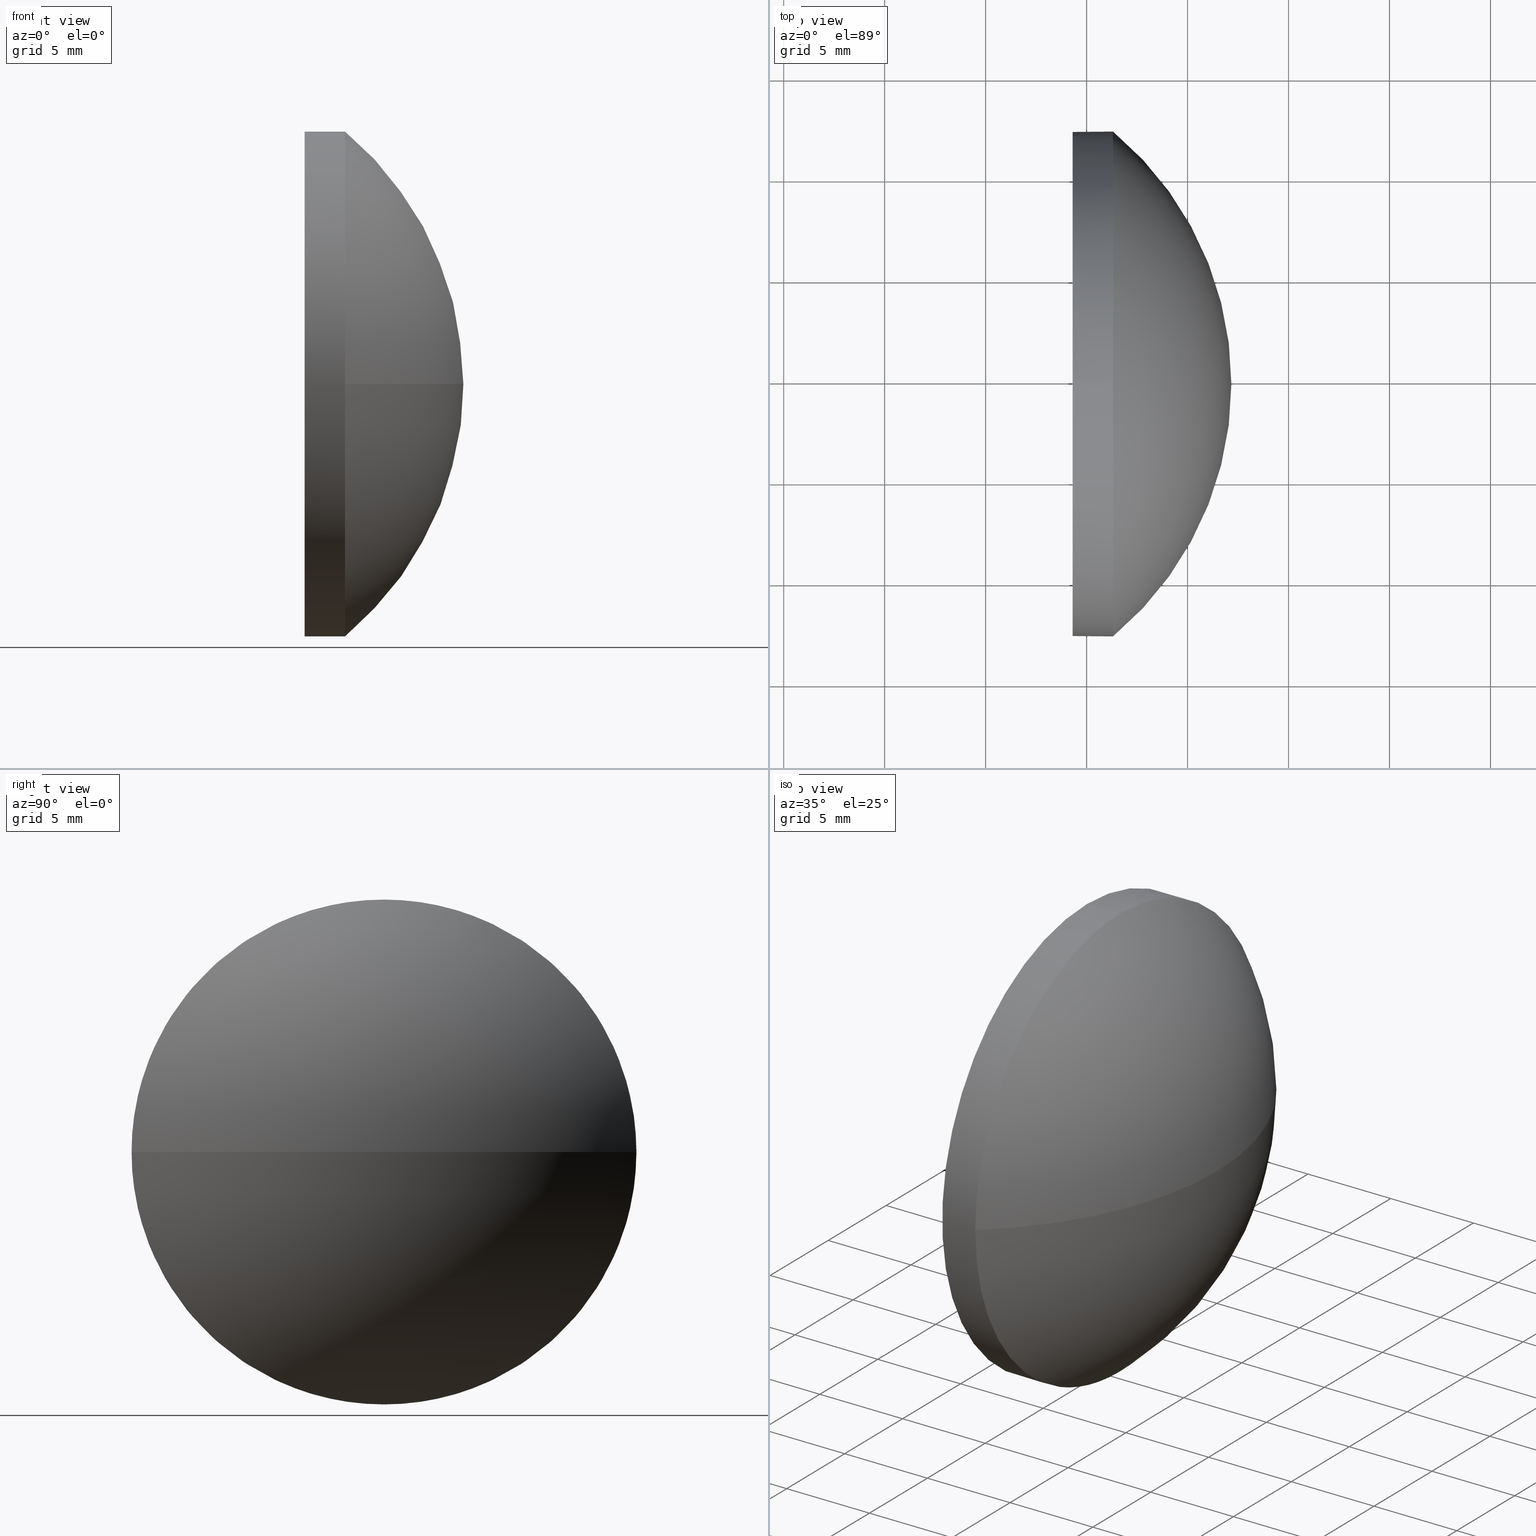
[diagram: canonical four-view strip — front | top / right | iso, engineering-drawing reading convention]
A machine part, canonical four-view strip (front | top / right | iso — engineering-drawing reading convention). The complete STEP part file that produces these views, byte-faithful:
ISO-10303-21;
HEADER;
FILE_DESCRIPTION (( 'STEP AP214' ),
    '1' );
FILE_NAME ('100210.STEP',
    '2019-05-23T07:03:20',
    ( '' ),
    ( '' ),
    'SwSTEP 2.0',
    'SolidWorks 2016',
    '' );
FILE_SCHEMA (( 'AUTOMOTIVE_DESIGN' ));
ENDSEC;

DATA;
#1 = VERTEX_POINT ( 'NONE', #4 ) ;
#2 = MECHANICAL_DESIGN_GEOMETRIC_PRESENTATION_REPRESENTATION (  '', ( #157 ), #80 ) ;
#3 = CIRCLE ( 'NONE', #97, 12.50000000000000000 ) ;
#4 = CARTESIAN_POINT ( 'NONE',  ( 411.3082929316683500, -17.72920143275539900, 0.0000000000000000000 ) ) ;
#5 = CYLINDRICAL_SURFACE ( 'NONE', #46, 12.50000000000000000 ) ;
#6 = CARTESIAN_POINT ( 'NONE',  ( 409.3082929316683500, -5.229201432755417000, 0.0000000000000000000 ) ) ;
#7 = ADVANCED_FACE ( 'NONE', ( #71 ), #109, .T. ) ;
#8 = CARTESIAN_POINT ( 'NONE',  ( 411.3082929316683500, -5.229201432755415300, -12.50000000000000000 ) ) ;
#9 = SURFACE_STYLE_USAGE ( .BOTH. , #39 ) ;
#10 = VERTEX_POINT ( 'NONE', #104 ) ;
#11 = UNCERTAINTY_MEASURE_WITH_UNIT (LENGTH_MEASURE( 1.000000000000000100E-005 ), #158, 'distance_accuracy_value', 'NONE');
#12 = AXIS2_PLACEMENT_3D ( 'NONE', #149, #67, #68 ) ;
#13 = EDGE_CURVE ( 'NONE', #107, #66, #3, .T. ) ;
#14 = AXIS2_PLACEMENT_3D ( 'NONE', #88, #117, #26 ) ;
#15 = ORIENTED_EDGE ( 'NONE', *, *, #13, .T. ) ;
#16 = DIRECTION ( 'NONE',  ( 0.0000000000000000000, 0.0000000000000000000, 1.000000000000000000 ) ) ;
#17 =( NAMED_UNIT ( * ) PLANE_ANGLE_UNIT ( ) SI_UNIT ( $, .RADIAN. ) );
#18 = DIRECTION ( 'NONE',  ( -1.000000000000000000, -0.0000000000000000000, -0.0000000000000000000 ) ) ;
#19 = CARTESIAN_POINT ( 'NONE',  ( 409.3082929316683500, -5.229201432755417000, 0.0000000000000000000 ) ) ;
#20 = CARTESIAN_POINT ( 'NONE',  ( 400.9063816688697000, -5.229201432755405500, 0.0000000000000000000 ) ) ;
#21 = DIRECTION ( 'NONE',  ( -1.000000000000000000, -0.0000000000000000000, -0.0000000000000000000 ) ) ;
#22 = CARTESIAN_POINT ( 'NONE',  ( 400.9063816688697000, -5.229201432755405500, 0.0000000000000000000 ) ) ;
#23 = EDGE_CURVE ( 'NONE', #66, #107, #48, .T. ) ;
#24 = PRODUCT_DEFINITION_FORMATION_WITH_SPECIFIED_SOURCE ( '�κ�', '', #111, .NOT_KNOWN. ) ;
#25 = ORIENTED_EDGE ( 'NONE', *, *, #33, .F. ) ;
#26 = DIRECTION ( 'NONE',  ( 1.000000000000000000, 0.0000000000000000000, 0.0000000000000000000 ) ) ;
#27 = ORIENTED_EDGE ( 'NONE', *, *, #84, .T. ) ;
#28 = APPLICATION_PROTOCOL_DEFINITION ( 'draft international standard', 'automotive_design', 1998, #141 ) ;
#29 =( GEOMETRIC_REPRESENTATION_CONTEXT ( 3 ) GLOBAL_UNCERTAINTY_ASSIGNED_CONTEXT ( ( #186 ) ) GLOBAL_UNIT_ASSIGNED_CONTEXT ( ( #30, #17, #126 ) ) REPRESENTATION_CONTEXT ( 'NONE', 'WORKASPACE' ) );
#30 =( LENGTH_UNIT ( ) NAMED_UNIT ( * ) SI_UNIT ( .MILLI., .METRE. ) );
#31 = ORIENTED_EDGE ( 'NONE', *, *, #13, .F. ) ;
#32 = CARTESIAN_POINT ( 'NONE',  ( 411.3082929316683500, -5.229201432755417000, 0.0000000000000000000 ) ) ;
#33 = EDGE_CURVE ( 'NONE', #90, #151, #98, .T. ) ;
#34 = DIRECTION ( 'NONE',  ( 0.0000000000000000000, 0.0000000000000000000, 1.000000000000000000 ) ) ;
#35 =( NAMED_UNIT ( * ) SI_UNIT ( $, .STERADIAN. ) SOLID_ANGLE_UNIT ( ) );
#36 = CARTESIAN_POINT ( 'NONE',  ( 407.2791853532313600, -5.229201432755415300, -12.50000000000000000 ) ) ;
#37 = ADVANCED_FACE ( 'NONE', ( #102 ), #5, .T. ) ;
#38 = PRODUCT_RELATED_PRODUCT_CATEGORY ( 'part', '', ( #111 ) ) ;
#39 = SURFACE_SIDE_STYLE ('',( #42 ) ) ;
#40 = ORIENTED_EDGE ( 'NONE', *, *, #150, .T. ) ;
#41 = PRESENTATION_LAYER_ASSIGNMENT (  '', '', ( #96 ) ) ;
#42 = SURFACE_STYLE_FILL_AREA ( #121 ) ;
#43 = ORIENTED_EDGE ( 'NONE', *, *, #145, .F. ) ;
#44 = FACE_OUTER_BOUND ( 'NONE', #140, .T. ) ;
#45 = SURFACE_STYLE_USAGE ( .BOTH. , #179 ) ;
#46 = AXIS2_PLACEMENT_3D ( 'NONE', #161, #76, #49 ) ;
#47 = DIRECTION ( 'NONE',  ( 0.0000000000000000000, -1.000000000000000000, 0.0000000000000000000 ) ) ;
#48 = CIRCLE ( 'NONE', #99, 12.50000000000000000 ) ;
#49 = DIRECTION ( 'NONE',  ( 0.0000000000000000000, 0.0000000000000000000, 1.000000000000000000 ) ) ;
#50 = DIRECTION ( 'NONE',  ( 0.0000000000000000000, 0.0000000000000000000, 1.000000000000000000 ) ) ;
#51 = DIRECTION ( 'NONE',  ( 0.0000000000000000000, 0.0000000000000000000, 1.000000000000000000 ) ) ;
#52 = AXIS2_PLACEMENT_3D ( 'NONE', #6, #181, #167 ) ;
#53 = CARTESIAN_POINT ( 'NONE',  ( 411.3082929316683500, -5.229201432755417000, 12.50000000000000000 ) ) ;
#54 = FACE_OUTER_BOUND ( 'NONE', #116, .T. ) ;
#55 = ORIENTED_EDGE ( 'NONE', *, *, #82, .T. ) ;
#56 = SHAPE_DEFINITION_REPRESENTATION ( #134, #173 ) ;
#57 = AXIS2_PLACEMENT_3D ( 'NONE', #131, #78, #50 ) ;
#58 = COLOUR_RGB ( '',1.000000000000000000, 1.000000000000000000, 1.000000000000000000 ) ;
#59 = AXIS2_PLACEMENT_3D ( 'NONE', #176, #18, #16 ) ;
#60 = AXIS2_PLACEMENT_3D ( 'NONE', #162, #21, #51 ) ;
#61 = DIRECTION ( 'NONE',  ( 0.0000000000000000000, 0.0000000000000000000, 1.000000000000000000 ) ) ;
#62 = CIRCLE ( 'NONE', #57, 12.50000000000000000 ) ;
#63 = UNCERTAINTY_MEASURE_WITH_UNIT (LENGTH_MEASURE( 1.000000000000000100E-005 ), #170, 'distance_accuracy_value', 'NONE');
#64 = DIRECTION ( 'NONE',  ( 0.0000000000000000000, -1.000000000000000000, 0.0000000000000000000 ) ) ;
#65 = CARTESIAN_POINT ( 'NONE',  ( 409.3082929316683500, -5.229201432755415300, -12.50000000000000000 ) ) ;
#66 = VERTEX_POINT ( 'NONE', #101 ) ;
#67 = DIRECTION ( 'NONE',  ( 0.0000000000000000000, -1.224646799147353200E-016, 1.000000000000000000 ) ) ;
#68 = DIRECTION ( 'NONE',  ( 0.0000000000000000000, -1.000000000000000000, -1.224646799147353000E-016 ) ) ;
#69 = LINE ( 'NONE', #36, #169 ) ;
#70 = PRESENTATION_STYLE_ASSIGNMENT (( #9 ) ) ;
#71 = FACE_OUTER_BOUND ( 'NONE', #153, .T. ) ;
#72 = EDGE_CURVE ( 'NONE', #1, #180, #175, .T. ) ;
#73 = FILL_AREA_STYLE ('',( #166 ) ) ;
#74 = DIRECTION ( 'NONE',  ( 0.0000000000000000000, 0.0000000000000000000, 1.000000000000000000 ) ) ;
#75 = ORIENTED_EDGE ( 'NONE', *, *, #72, .F. ) ;
#76 = DIRECTION ( 'NONE',  ( -1.000000000000000000, -0.0000000000000000000, -0.0000000000000000000 ) ) ;
#77 = DIRECTION ( 'NONE',  ( 0.0000000000000000000, 0.0000000000000000000, 1.000000000000000000 ) ) ;
#78 = DIRECTION ( 'NONE',  ( -1.000000000000000000, -0.0000000000000000000, -0.0000000000000000000 ) ) ;
#79 =( NAMED_UNIT ( * ) PLANE_ANGLE_UNIT ( ) SI_UNIT ( $, .RADIAN. ) );
#80 =( GEOMETRIC_REPRESENTATION_CONTEXT ( 3 ) GLOBAL_UNCERTAINTY_ASSIGNED_CONTEXT ( ( #63 ) ) GLOBAL_UNIT_ASSIGNED_CONTEXT ( ( #170, #79, #35 ) ) REPRESENTATION_CONTEXT ( 'NONE', 'WORKASPACE' ) );
#81 = ORIENTED_EDGE ( 'NONE', *, *, #150, .F. ) ;
#82 = EDGE_CURVE ( 'NONE', #151, #1, #62, .T. ) ;
#83 = COLOUR_RGB ( '',1.000000000000000000, 1.000000000000000000, 1.000000000000000000 ) ;
#84 = EDGE_CURVE ( 'NONE', #10, #1, #156, .T. ) ;
#85 = EDGE_LOOP ( 'NONE', ( #81, #55, #94, #171, #31 ) ) ;
#86 = DIRECTION ( 'NONE',  ( -1.000000000000000000, -0.0000000000000000000, -0.0000000000000000000 ) ) ;
#87 =( NAMED_UNIT ( * ) SI_UNIT ( $, .STERADIAN. ) SOLID_ANGLE_UNIT ( ) );
#88 = CARTESIAN_POINT ( 'NONE',  ( 0.0000000000000000000, 0.0000000000000000000, 0.0000000000000000000 ) ) ;
#89 = CARTESIAN_POINT ( 'NONE',  ( 411.3082929316683500, 7.270798567244581200, 1.530808498934189700E-015 ) ) ;
#90 = VERTEX_POINT ( 'NONE', #89 ) ;
#91 = DIRECTION ( 'NONE',  ( -1.000000000000000000, -0.0000000000000000000, -0.0000000000000000000 ) ) ;
#92 = DIRECTION ( 'NONE',  ( -1.000000000000000000, -0.0000000000000000000, -0.0000000000000000000 ) ) ;
#93 = CIRCLE ( 'NONE', #59, 12.50000000000000000 ) ;
#94 = ORIENTED_EDGE ( 'NONE', *, *, #72, .T. ) ;
#95 = PRESENTATION_STYLE_ASSIGNMENT (( #45 ) ) ;
#96 = STYLED_ITEM ( 'NONE', ( #95 ), #173 ) ;
#97 = AXIS2_PLACEMENT_3D ( 'NONE', #164, #177, #77 ) ;
#98 = CIRCLE ( 'NONE', #139, 12.50000000000000000 ) ;
#99 = AXIS2_PLACEMENT_3D ( 'NONE', #19, #86, #34 ) ;
#100 = ORIENTED_EDGE ( 'NONE', *, *, #183, .F. ) ;
#101 = CARTESIAN_POINT ( 'NONE',  ( 409.3082929316683500, -5.229201432755417000, 12.50000000000000000 ) ) ;
#102 = FACE_OUTER_BOUND ( 'NONE', #85, .T. ) ;
#103 = ADVANCED_FACE ( 'NONE', ( #44 ), #119, .T. ) ;
#104 = CARTESIAN_POINT ( 'NONE',  ( 417.1682929316683600, -5.229201432755406400, 0.0000000000000000000 ) ) ;
#105 = MANIFOLD_SOLID_BREP ( '��ת1', #184 ) ;
#106 = MECHANICAL_DESIGN_GEOMETRIC_PRESENTATION_REPRESENTATION (  '', ( #96 ), #142 ) ;
#107 = VERTEX_POINT ( 'NONE', #65 ) ;
#108 = PLANE ( 'NONE',  #52 ) ;
#109 = SPHERICAL_SURFACE ( 'NONE', #155, 16.26191126279863800 ) ;
#110 = ORIENTED_EDGE ( 'NONE', *, *, #33, .T. ) ;
#111 = PRODUCT ( '100210', '100210', '', ( #114 ) ) ;
#112 = ORIENTED_EDGE ( 'NONE', *, *, #145, .T. ) ;
#113 = FACE_OUTER_BOUND ( 'NONE', #185, .T. ) ;
#114 = PRODUCT_CONTEXT ( 'NONE', #178, 'mechanical' ) ;
#115 = DIRECTION ( 'NONE',  ( -1.000000000000000000, -0.0000000000000000000, -0.0000000000000000000 ) ) ;
#116 = EDGE_LOOP ( 'NONE', ( #43, #27, #125, #25 ) ) ;
#117 = DIRECTION ( 'NONE',  ( 0.0000000000000000000, 0.0000000000000000000, 1.000000000000000000 ) ) ;
#118 = PRODUCT_DEFINITION ( 'δ֪', '', #24, #123 ) ;
#119 = CYLINDRICAL_SURFACE ( 'NONE', #60, 12.50000000000000000 ) ;
#120 = FILL_AREA_STYLE_COLOUR ( '', #83 ) ;
#121 = FILL_AREA_STYLE ('',( #120 ) ) ;
#122 = LINE ( 'NONE', #182, #154 ) ;
#123 = PRODUCT_DEFINITION_CONTEXT ( 'detailed design', #141, 'design' ) ;
#124 = AXIS2_PLACEMENT_3D ( 'NONE', #32, #127, #147 ) ;
#125 = ORIENTED_EDGE ( 'NONE', *, *, #82, .F. ) ;
#126 =( NAMED_UNIT ( * ) SI_UNIT ( $, .STERADIAN. ) SOLID_ANGLE_UNIT ( ) );
#127 = DIRECTION ( 'NONE',  ( -1.000000000000000000, -0.0000000000000000000, -0.0000000000000000000 ) ) ;
#128 = ADVANCED_FACE ( 'NONE', ( #113 ), #108, .F. ) ;
#129 = SPHERICAL_SURFACE ( 'NONE', #174, 16.26191126279863800 ) ;
#130 = CARTESIAN_POINT ( 'NONE',  ( 411.3082929316683500, -5.229201432755417000, 0.0000000000000000000 ) ) ;
#131 = CARTESIAN_POINT ( 'NONE',  ( 411.3082929316683500, -5.229201432755417000, 0.0000000000000000000 ) ) ;
#132 = DIRECTION ( 'NONE',  ( -1.000000000000000000, 0.0000000000000000000, 0.0000000000000000000 ) ) ;
#133 = CIRCLE ( 'NONE', #12, 16.26191126279864100 ) ;
#134 = PRODUCT_DEFINITION_SHAPE ( 'NONE', 'NONE',  #118 ) ;
#135 = ORIENTED_EDGE ( 'NONE', *, *, #23, .F. ) ;
#136 = EDGE_CURVE ( 'NONE', #180, #66, #122, .T. ) ;
#137 = ORIENTED_EDGE ( 'NONE', *, *, #136, .F. ) ;
#138 = ORIENTED_EDGE ( 'NONE', *, *, #84, .F. ) ;
#139 = AXIS2_PLACEMENT_3D ( 'NONE', #130, #115, #61 ) ;
#140 = EDGE_LOOP ( 'NONE', ( #110, #40, #135, #137, #165 ) ) ;
#141 = APPLICATION_CONTEXT ( 'automotive_design' ) ;
#142 =( GEOMETRIC_REPRESENTATION_CONTEXT ( 3 ) GLOBAL_UNCERTAINTY_ASSIGNED_CONTEXT ( ( #11 ) ) GLOBAL_UNIT_ASSIGNED_CONTEXT ( ( #158, #163, #87 ) ) REPRESENTATION_CONTEXT ( 'NONE', 'WORKASPACE' ) );
#143 = SURFACE_STYLE_FILL_AREA ( #73 ) ;
#144 = ORIENTED_EDGE ( 'NONE', *, *, #23, .T. ) ;
#145 = EDGE_CURVE ( 'NONE', #10, #90, #133, .T. ) ;
#146 = ADVANCED_FACE ( 'NONE', ( #54 ), #129, .T. ) ;
#147 = DIRECTION ( 'NONE',  ( 0.0000000000000000000, 0.0000000000000000000, 1.000000000000000000 ) ) ;
#148 = DIRECTION ( 'NONE',  ( 0.0000000000000000000, 0.0000000000000000000, 1.000000000000000000 ) ) ;
#149 = CARTESIAN_POINT ( 'NONE',  ( 400.9063816688697000, -5.229201432755405500, 0.0000000000000000000 ) ) ;
#150 = EDGE_CURVE ( 'NONE', #151, #107, #69, .T. ) ;
#151 = VERTEX_POINT ( 'NONE', #8 ) ;
#152 = AXIS2_PLACEMENT_3D ( 'NONE', #22, #168, #132 ) ;
#153 = EDGE_LOOP ( 'NONE', ( #138, #112, #100, #75 ) ) ;
#154 = VECTOR ( 'NONE', #91, 1000.000000000000000 ) ;
#155 = AXIS2_PLACEMENT_3D ( 'NONE', #159, #74, #47 ) ;
#156 = CIRCLE ( 'NONE', #152, 16.26191126279863400 ) ;
#157 = STYLED_ITEM ( 'NONE', ( #70 ), #105 ) ;
#158 =( LENGTH_UNIT ( ) NAMED_UNIT ( * ) SI_UNIT ( .MILLI., .METRE. ) );
#159 = CARTESIAN_POINT ( 'NONE',  ( 400.9063816688697000, -5.229201432755405500, 0.0000000000000000000 ) ) ;
#160 = APPLICATION_PROTOCOL_DEFINITION ( 'draft international standard', 'automotive_design', 1998, #178 ) ;
#161 = CARTESIAN_POINT ( 'NONE',  ( 407.2791853532313600, -5.229201432755417000, 0.0000000000000000000 ) ) ;
#162 = CARTESIAN_POINT ( 'NONE',  ( 407.2791853532313600, -5.229201432755417000, 0.0000000000000000000 ) ) ;
#163 =( NAMED_UNIT ( * ) PLANE_ANGLE_UNIT ( ) SI_UNIT ( $, .RADIAN. ) );
#164 = CARTESIAN_POINT ( 'NONE',  ( 409.3082929316683500, -5.229201432755417000, 0.0000000000000000000 ) ) ;
#165 = ORIENTED_EDGE ( 'NONE', *, *, #183, .T. ) ;
#166 = FILL_AREA_STYLE_COLOUR ( '', #58 ) ;
#167 = DIRECTION ( 'NONE',  ( 0.0000000000000000000, 0.0000000000000000000, -1.000000000000000000 ) ) ;
#168 = DIRECTION ( 'NONE',  ( 0.0000000000000000000, 0.0000000000000000000, -1.000000000000000000 ) ) ;
#169 = VECTOR ( 'NONE', #92, 1000.000000000000000 ) ;
#170 =( LENGTH_UNIT ( ) NAMED_UNIT ( * ) SI_UNIT ( .MILLI., .METRE. ) );
#171 = ORIENTED_EDGE ( 'NONE', *, *, #136, .T. ) ;
#172 = PRESENTATION_LAYER_ASSIGNMENT (  '', '', ( #157 ) ) ;
#173 = ADVANCED_BREP_SHAPE_REPRESENTATION ( '100210', ( #105, #14 ), #29 ) ;
#174 = AXIS2_PLACEMENT_3D ( 'NONE', #20, #148, #64 ) ;
#175 = CIRCLE ( 'NONE', #124, 12.50000000000000000 ) ;
#176 = CARTESIAN_POINT ( 'NONE',  ( 411.3082929316683500, -5.229201432755417000, 0.0000000000000000000 ) ) ;
#177 = DIRECTION ( 'NONE',  ( -1.000000000000000000, -0.0000000000000000000, -0.0000000000000000000 ) ) ;
#178 = APPLICATION_CONTEXT ( 'automotive_design' ) ;
#179 = SURFACE_SIDE_STYLE ('',( #143 ) ) ;
#180 = VERTEX_POINT ( 'NONE', #53 ) ;
#181 = DIRECTION ( 'NONE',  ( 1.000000000000000000, 0.0000000000000000000, 0.0000000000000000000 ) ) ;
#182 = CARTESIAN_POINT ( 'NONE',  ( 407.2791853532313600, -5.229201432755417000, 12.50000000000000000 ) ) ;
#183 = EDGE_CURVE ( 'NONE', #180, #90, #93, .T. ) ;
#184 = CLOSED_SHELL ( 'NONE', ( #103, #7, #146, #37, #128 ) ) ;
#185 = EDGE_LOOP ( 'NONE', ( #144, #15 ) ) ;
#186 = UNCERTAINTY_MEASURE_WITH_UNIT (LENGTH_MEASURE( 1.000000000000000100E-005 ), #30, 'distance_accuracy_value', 'NONE');
ENDSEC;
END-ISO-10303-21;
